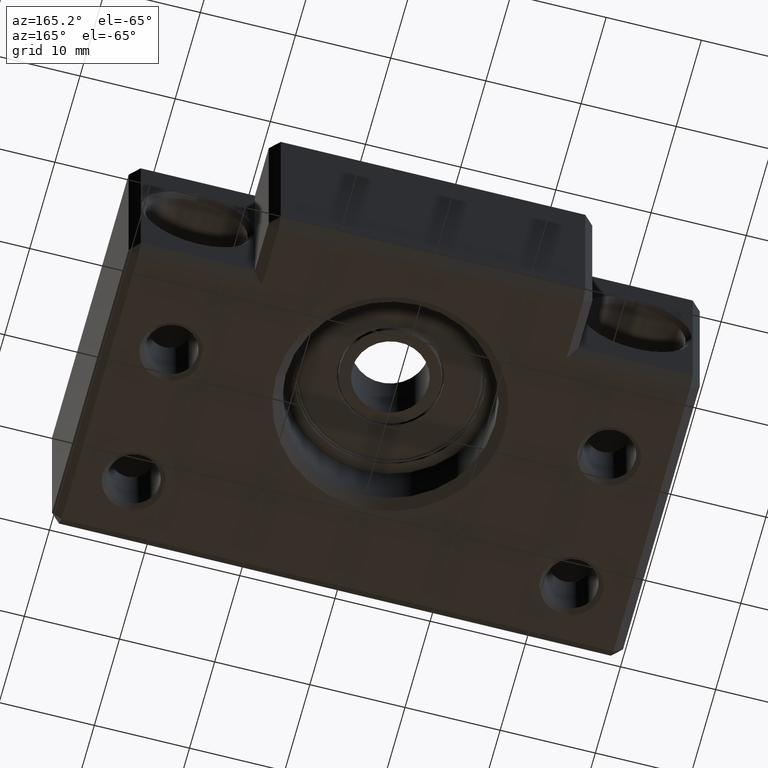
[diagram: clean part render]
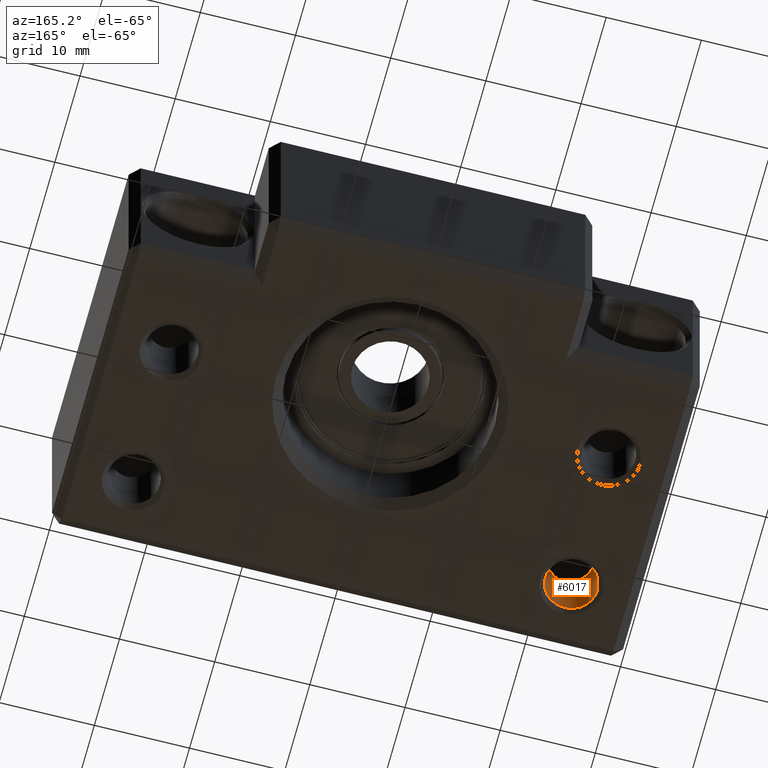
[diagram: same view with one face highlighted and labeled with its STEP entity id]
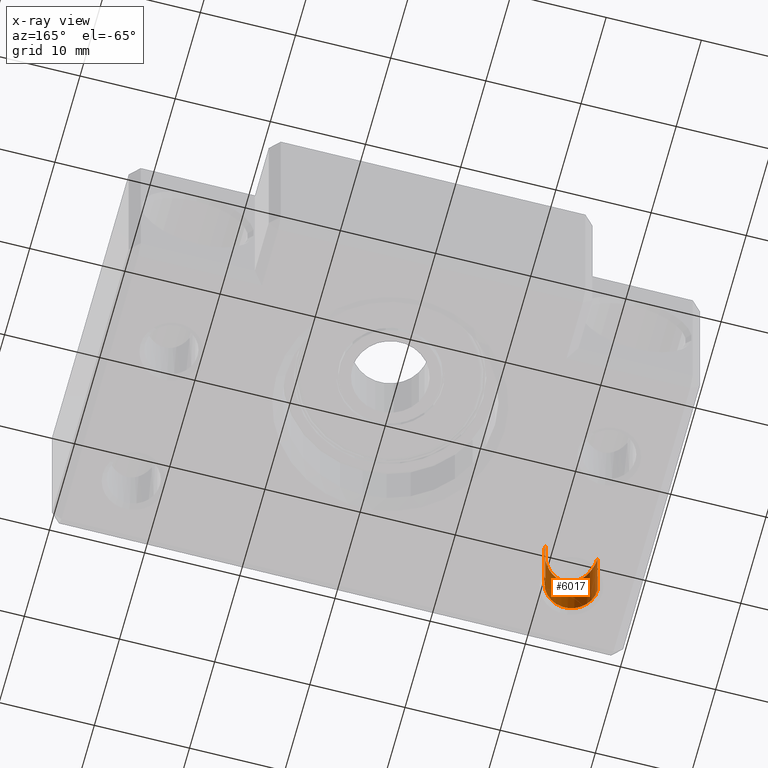
[diagram: x-ray of the same camera — body ghosted, the highlighted face saturated]
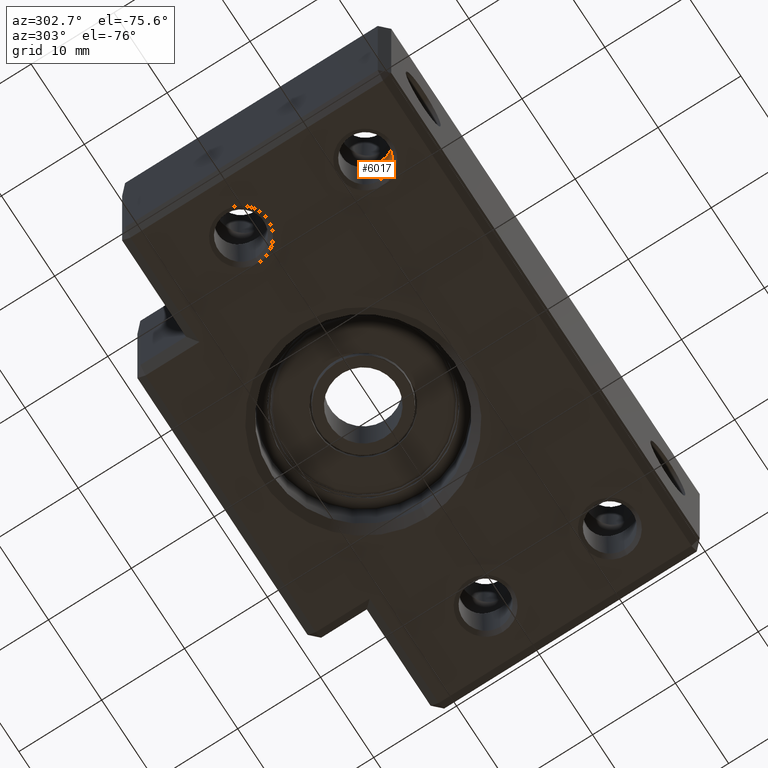
[diagram: same view with one face highlighted and labeled with its STEP entity id]
A machine part, auxiliary view. The second image highlights one B-rep face of the part: STEP entity #6017.
The next image is the same camera in x-ray: the body ghosted, the highlighted face saturated — about 2% of this face is hidden behind the body in this view.
A second angle (auxiliary view) of the same face is appended — the face is thin or edge-on in the first view.
In plain terms, the highlighted cylindrical surface (edge-blend (fillet) strip) has radius 2.75 mm, axis along (-0, -0, 1).
Its self-contained STEP definition (entity closure, byte-faithful):
#2 = VERTEX_POINT ( 'NONE', #5698 ) ;
#4 = ORIENTED_EDGE ( 'NONE', *, *, #543, .T. ) ;
#13 = ORIENTED_EDGE ( 'NONE', *, *, #17, .F. ) ;
#14 = EDGE_CURVE ( 'NONE', #541, #2, #784, .T. ) ;
#17 = EDGE_CURVE ( 'NONE', #535, #2, #783, .T. ) ;
#83 = EDGE_CURVE ( 'NONE', #604, #544, #919, .T. ) ;
#535 = VERTEX_POINT ( 'NONE', #1701 ) ;
#541 = VERTEX_POINT ( 'NONE', #1738 ) ;
#543 = EDGE_CURVE ( 'NONE', #544, #541, #1728, .T. ) ;
#544 = VERTEX_POINT ( 'NONE', #1729 ) ;
#604 = VERTEX_POINT ( 'NONE', #1913 ) ;
#777 = CARTESIAN_POINT ( 'NONE',  ( -22.61492523139000700, 4.270523419543726700, -3.282842859970557900 ) ) ;
#778 = CARTESIAN_POINT ( 'NONE',  ( -22.80902047266262000, 4.250000000000001800, -3.299999999999999400 ) ) ;
#779 = DIRECTION ( 'NONE',  ( -0.0000000000000000000, -0.0000000000000000000, 1.000000000000000000 ) ) ;
#780 = VECTOR ( 'NONE', #779, 1000.000000000000000 ) ;
#781 = CARTESIAN_POINT ( 'NONE',  ( -20.25000000000000400, 6.999999999999992000, 10.00000000000000000 ) ) ;
#782 = CARTESIAN_POINT ( 'NONE',  ( -22.99999999999999600, 4.250000000000001800, -3.299999999999998900 ) ) ;
#783 = LINE ( 'NONE', #781, #780 ) ;
#784 = B_SPLINE_CURVE_WITH_KNOTS ( 'NONE', 3,
 ( #782, #778, #777, #840, #839, #838, #837, #835, #834, #833, #832, #831, #830, #829, #828, #827, #826, #825 ),
 .UNSPECIFIED., .F., .F.,
 ( 4, 2, 2, 2, 2, 2, 2, 2, 4 ),
 ( 0.01380606029903933200, 0.01437993759460006400, 0.01495381489016079500, 0.01552769218572152800, 0.01610156948128226000, 0.01667544677684298900, 0.01724932407240372200, 0.01782320136796445400, 0.01839707866352518700 ),
 .UNSPECIFIED. ) ;
#825 = CARTESIAN_POINT ( 'NONE',  ( -20.25000000000000400, 6.999999999999992900, -1.824143634695483100 ) ) ;
#826 = CARTESIAN_POINT ( 'NONE',  ( -20.25000000000000400, 6.805441014923606400, -1.824143634695480200 ) ) ;
#827 = CARTESIAN_POINT ( 'NONE',  ( -20.27095477193938300, 6.614052690889453200, -1.856512996427404100 ) ) ;
#828 = CARTESIAN_POINT ( 'NONE',  ( -20.34711845056831700, 6.252428821519273100, -1.963809524212886600 ) ) ;
#829 = CARTESIAN_POINT ( 'NONE',  ( -20.40244862818665400, 6.080600186929981300, -2.038123752119977100 ) ) ;
#830 = CARTESIAN_POINT ( 'NONE',  ( -20.53851153387505600, 5.761596319201018400, -2.200521776601832800 ) ) ;
#831 = CARTESIAN_POINT ( 'NONE',  ( -20.62050732348247100, 5.610982822434451100, -2.290234859280796600 ) ) ;
#832 = CARTESIAN_POINT ( 'NONE',  ( -20.80954026687541300, 5.328701021740124100, -2.471648693853005800 ) ) ;
#833 = CARTESIAN_POINT ( 'NONE',  ( -20.91555699301779800, 5.198244353438221700, -2.562590444923891200 ) ) ;
#834 = CARTESIAN_POINT ( 'NONE',  ( -21.15258324494864100, 4.955916490837582300, -2.738398030040139400 ) ) ;
#835 = CARTESIAN_POINT ( 'NONE',  ( -21.28476910376961200, 4.843258880550957100, -2.824009815375321700 ) ) ;
#837 = CARTESIAN_POINT ( 'NONE',  ( -21.57405502758343400, 4.641985958619931900, -2.980558571871957200 ) ) ;
#838 = CARTESIAN_POINT ( 'NONE',  ( -21.72953612385075700, 4.554150801814859800, -3.050870950992354800 ) ) ;
#839 = CARTESIAN_POINT ( 'NONE',  ( -22.06619437927033500, 4.406881448225572500, -3.170157580137431500 ) ) ;
#840 = CARTESIAN_POINT ( 'NONE',  ( -22.24460323659065600, 4.349018915474876400, -3.217874383892322100 ) ) ;
#916 = DIRECTION ( 'NONE',  ( -0.0000000000000000000, -0.0000000000000000000, 1.000000000000000000 ) ) ;
#917 = VECTOR ( 'NONE', #916, 1000.000000000000000 ) ;
#918 = CARTESIAN_POINT ( 'NONE',  ( -25.74999999999998900, 6.999999999999992000, 10.00000000000000000 ) ) ;
#919 = LINE ( 'NONE', #918, #917 ) ;
#1701 = CARTESIAN_POINT ( 'NONE',  ( -20.25000000000000400, 6.999999999999992000, -9.499999999999989300 ) ) ;
#1728 = B_SPLINE_CURVE_WITH_KNOTS ( 'NONE', 3,
 ( #1737, #1736, #1735, #1734, #1733, #1732, #1731, #1804, #1803, #1802, #1801, #1800, #1799, #1798, #1797, #1796, #1795, #1794 ),
 .UNSPECIFIED., .F., .F.,
 ( 4, 2, 2, 2, 2, 2, 2, 2, 4 ),
 ( 0.009199788583540861900, 0.009487680565759517400, 0.009775572547978173000, 0.01035135651241547900, 0.01092714047685278500, 0.01150292444129009200, 0.01265449237016471100, 0.01323027633460202200, 0.01380606029903933200 ),
 .UNSPECIFIED. ) ;
#1729 = CARTESIAN_POINT ( 'NONE',  ( -25.74999999999998900, 6.999999999999992000, -1.824143634695482500 ) ) ;
#1731 = CARTESIAN_POINT ( 'NONE',  ( -25.59858483025218900, 6.083100711606434200, -2.036875540463805500 ) ) ;
#1732 = CARTESIAN_POINT ( 'NONE',  ( -25.65294562623313400, 6.252555037035338400, -1.963725942618319300 ) ) ;
#1733 = CARTESIAN_POINT ( 'NONE',  ( -25.71014086642484400, 6.524384502737079000, -1.883141392062589200 ) ) ;
#1734 = CARTESIAN_POINT ( 'NONE',  ( -25.72511853464798300, 6.618829134589979900, -1.861194002310837800 ) ) ;
#1735 = CARTESIAN_POINT ( 'NONE',  ( -25.74495340977167100, 6.808184894488706000, -1.831814652278642500 ) ) ;
#1736 = CARTESIAN_POINT ( 'NONE',  ( -25.75000000000000000, 6.903662625237114300, -1.824143634695483800 ) ) ;
#1737 = CARTESIAN_POINT ( 'NONE',  ( -25.74999999999998900, 6.999999999999992000, -1.824143634695482500 ) ) ;
#1738 = CARTESIAN_POINT ( 'NONE',  ( -22.99999999999999600, 4.250000000000001800, -3.299999999999998900 ) ) ;
#1794 = CARTESIAN_POINT ( 'NONE',  ( -22.99999999999999600, 4.250000000000001800, -3.299999999999998900 ) ) ;
#1795 = CARTESIAN_POINT ( 'NONE',  ( -23.19161404402526800, 4.250000000000002700, -3.299999999999999800 ) ) ;
#1796 = CARTESIAN_POINT ( 'NONE',  ( -23.38578435491303500, 4.270569058112103600, -3.282803907253454500 ) ) ;
#1797 = CARTESIAN_POINT ( 'NONE',  ( -23.75759989305435100, 4.349591496188797800, -3.217401663457368300 ) ) ;
#1798 = CARTESIAN_POINT ( 'NONE',  ( -23.93465688083092500, 4.407121181766700400, -3.169957448176056000 ) ) ;
#1799 = CARTESIAN_POINT ( 'NONE',  ( -24.44208832670900500, 4.629494260357151200, -2.989855530037435600 ) ) ;
#1800 = CARTESIAN_POINT ( 'NONE',  ( -24.72479033668481600, 4.830774561348150100, -2.829227714854539100 ) ) ;
#1801 = CARTESIAN_POINT ( 'NONE',  ( -25.08516692162334000, 5.198871440937168100, -2.562115668929378900 ) ) ;
#1802 = CARTESIAN_POINT ( 'NONE',  ( -25.19173288340901000, 5.330488173863253500, -2.470470425103064500 ) ) ;
#1803 = CARTESIAN_POINT ( 'NONE',  ( -25.37937374384936700, 5.610919960222921600, -2.290305163205451000 ) ) ;
#1804 = CARTESIAN_POINT ( 'NONE',  ( -25.46082821204948100, 5.759970993946206300, -2.201324509957094800 ) ) ;
#1913 = CARTESIAN_POINT ( 'NONE',  ( -25.74999999999998900, 6.999999999999992000, -9.499999999999989300 ) ) ;
#3714 = DIRECTION ( 'NONE',  ( 1.000000000000000000, 0.0000000000000000000, 0.0000000000000000000 ) ) ;
#3715 = DIRECTION ( 'NONE',  ( -0.0000000000000000000, -0.0000000000000000000, -1.000000000000000000 ) ) ;
#3716 = CARTESIAN_POINT ( 'NONE',  ( -22.99999999999999600, 6.999999999999992000, -9.499999999999989300 ) ) ;
#3717 = AXIS2_PLACEMENT_3D ( 'NONE', #3716, #3715, #3714 ) ;
#3718 = CIRCLE ( 'NONE', #3717, 2.749999999999992000 ) ;
#4264 = DIRECTION ( 'NONE',  ( 1.000000000000000000, 0.0000000000000000000, 0.0000000000000000000 ) ) ;
#4265 = DIRECTION ( 'NONE',  ( -0.0000000000000000000, -0.0000000000000000000, 1.000000000000000000 ) ) ;
#4266 = CARTESIAN_POINT ( 'NONE',  ( -22.99999999999999600, 6.999999999999992000, 10.00000000000000000 ) ) ;
#4267 = AXIS2_PLACEMENT_3D ( 'NONE', #4266, #4265, #4264 ) ;
#4268 = CYLINDRICAL_SURFACE ( 'NONE', #4267, 2.749999999999992000 ) ;
#4288 = FACE_OUTER_BOUND ( 'NONE', #6019, .T. ) ;
#5687 = EDGE_CURVE ( 'NONE', #535, #604, #3718, .T. ) ;
#5698 = CARTESIAN_POINT ( 'NONE',  ( -20.25000000000000400, 6.999999999999992900, -1.824143634695483100 ) ) ;
#6017 = ADVANCED_FACE ( 'NONE', ( #4288 ), #4268, .F. ) ;
#6019 = EDGE_LOOP ( 'NONE', ( #6025, #6020, #4, #6414, #13 ) ) ;
#6020 = ORIENTED_EDGE ( 'NONE', *, *, #83, .T. ) ;
#6025 = ORIENTED_EDGE ( 'NONE', *, *, #5687, .T. ) ;
#6414 = ORIENTED_EDGE ( 'NONE', *, *, #14, .T. ) ;